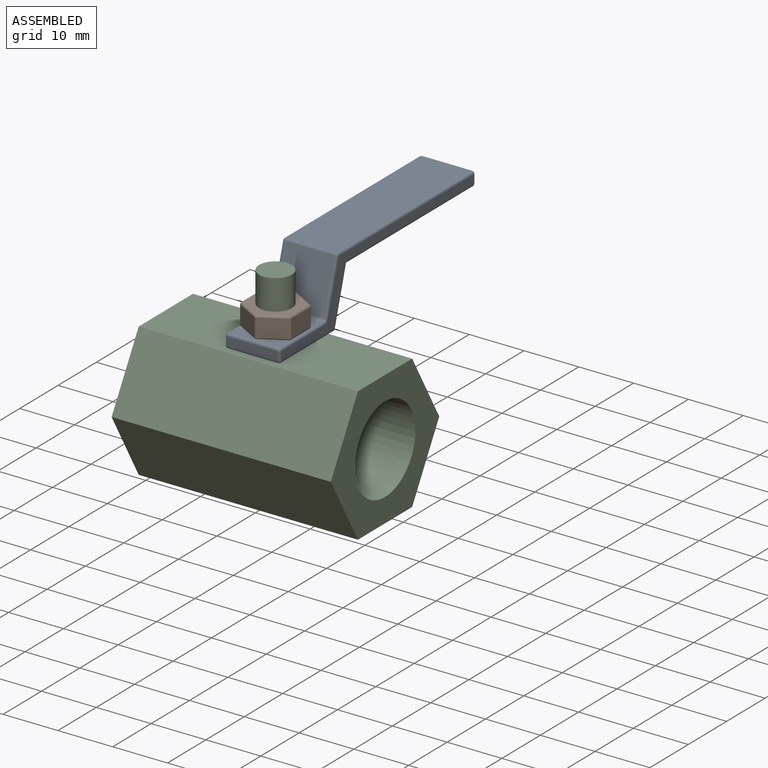
[diagram: assembled view]
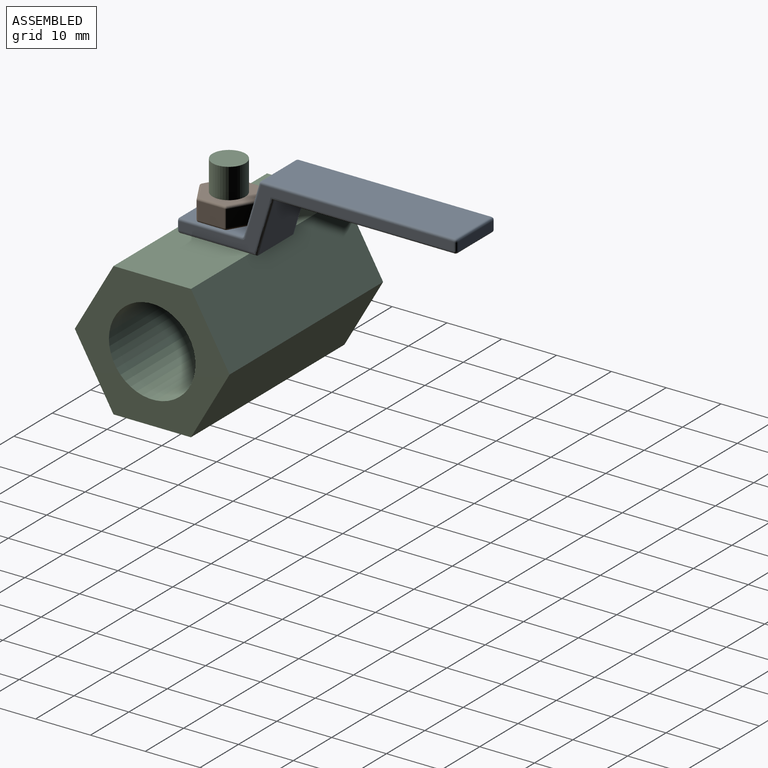
[diagram: assembled view, second angle]
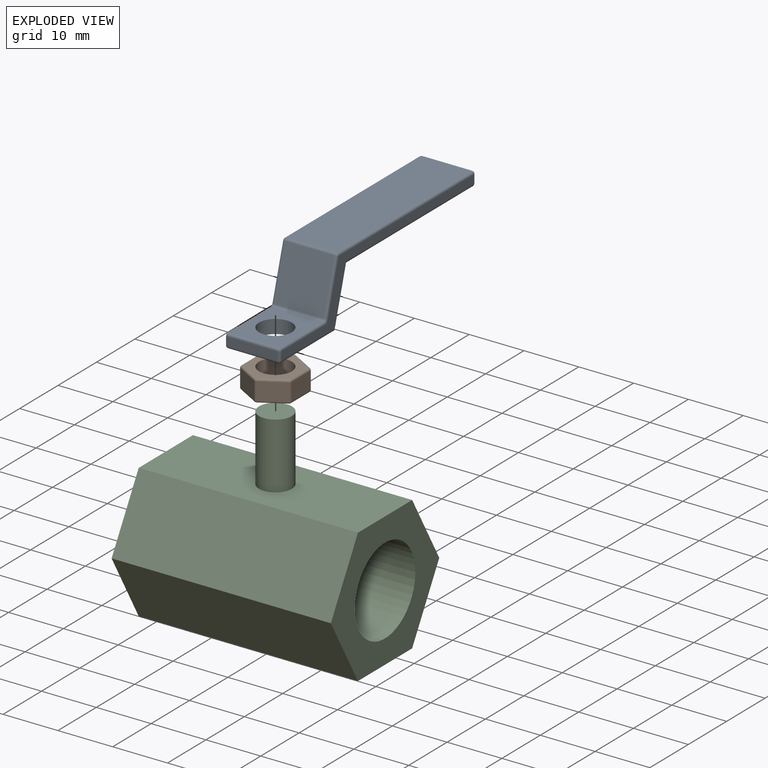
[diagram: exploded view]
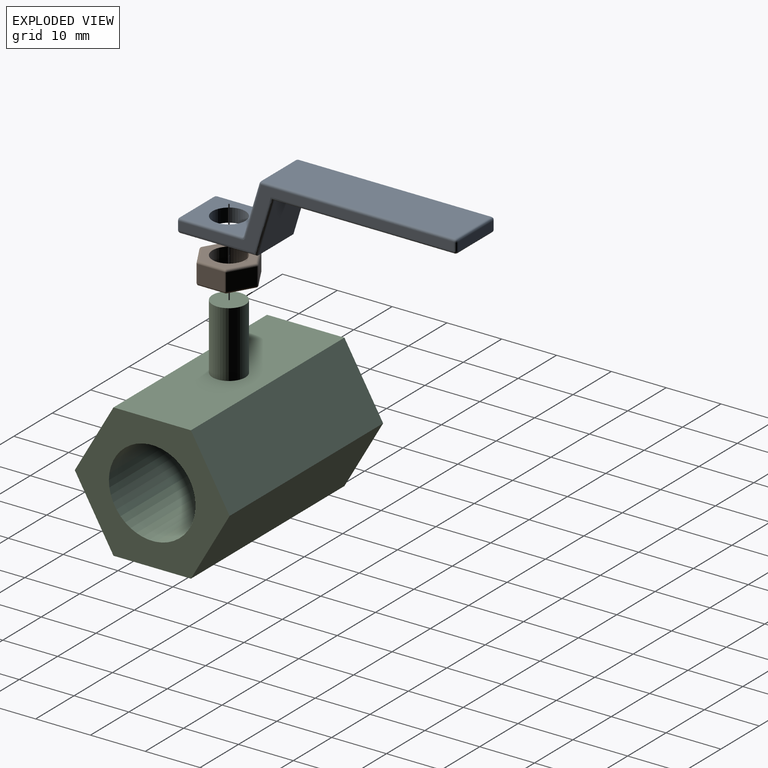
[diagram: exploded view, second angle]
ASSEMBLY  parts=3 mates=2
PART A: 65 faces, bbox 11x53.4x13.5 mm
  f0: plane 35.13x9mm, normal (0,0,1), area 316.2mm2, adj f52,f57,f60,f63
  f1: plane 9.29x9mm, normal (0,-0.96,0.29), area 87.3mm2, adj f49,f58,f59,f63
  f2: plane 11.13x9mm, normal (0,0,1), area 71.9mm2, adj f39,f48,f49,f50,f64
  f3: plane 9x1.5mm, normal (0,-1,0), area 13.5mm2, adj f31,f38,f39,f40
  f4: plane 14x9mm, normal (0,0,-1), area 97.7mm2, adj f5,f30,f31,f32,f64
  f5: plane 10x9mm, normal (0,0.96,-0.29), area 94mm2, adj f4,f6,f33,f36
  f6: plane 33x9mm, normal (0,0,-1), area 297mm2, adj f5,f37,f41,f42
  f7: plane 9x1.5mm, normal (0,1,0), area 13.5mm2, adj f42,f47,f51,f52
  f8: plane 50.02x11.52mm, normal (1,0,0), area 92.7mm2, adj f30,f33,f37,f38,f47,f48,f54,f57
  f9: plane 50.02x11.52mm, normal (-1,0,0), area 92.7mm2, adj f32,f36,f40,f41,f50,f51,f55,f59
  f10: bspline ~0.38x0.36mm, area 0.1mm2, adj f11,f59,f60,f62
  f11: bspline ~0.38x0.3mm, area 0.1mm2, adj f10,f59,f62,f63
  f12: bspline ~0.38x0.36mm, area 0.1mm2, adj f13,f57,f58,f61
  f13: bspline ~0.38x0.31mm, area 0.1mm2, adj f12,f57,f61,f63
  f14: bspline ~0.39x0.39mm, area 0.2mm2, adj f15,f51,f52,f56
  f15: bspline ~0.39x0.39mm, area 0.2mm2, adj f14,f51,f56,f60
  f16: bspline ~0.39x0.39mm, area 0.2mm2, adj f17,f47,f52,f53
  f17: bspline ~0.39x0.39mm, area 0.2mm2, adj f16,f52,f53,f57
  f18: bspline ~0.39x0.39mm, area 0.2mm2, adj f19,f41,f42,f46
  f19: bspline ~0.39x0.39mm, area 0.2mm2, adj f18,f41,f46,f51
  f20: bspline ~0.39x0.39mm, area 0.2mm2, adj f21,f39,f40,f45
  f21: bspline ~0.39x0.39mm, area 0.2mm2, adj f20,f39,f45,f50
  f22: bspline ~0.39x0.39mm, area 0.2mm2, adj f23,f38,f39,f44
  f23: bspline ~0.39x0.39mm, area 0.2mm2, adj f22,f38,f44,f48
  f24: bspline ~0.39x0.39mm, area 0.2mm2, adj f25,f37,f42,f43
  f25: bspline ~0.39x0.39mm, area 0.2mm2, adj f24,f42,f43,f47
  f26: bspline ~0.39x0.39mm, area 0.2mm2, adj f27,f31,f32,f35
  f27: bspline ~0.39x0.39mm, area 0.2mm2, adj f26,f31,f35,f40
  f28: bspline ~0.39x0.39mm, area 0.2mm2, adj f29,f30,f31,f34
  f29: bspline ~0.39x0.39mm, area 0.2mm2, adj f28,f30,f34,f38
  f30: bspline ~15.95x0.5mm, area 11.2mm2, adj f4,f8,f28,f29,f33
  f31: bspline ~11x0.5mm, area 7.3mm2, adj f3,f4,f26,f27,f28,f34
  f32: bspline ~15.95x0.5mm, area 11.2mm2, adj f4,f9,f26,f35,f36
  f33: bspline ~11.54x3.9mm, area 8.5mm2, adj f5,f8,f30,f37
  f34: bspline ~0.39x0.39mm, area 0.2mm2, adj f28,f29,f31,f38
  f35: bspline ~0.39x0.39mm, area 0.2mm2, adj f26,f27,f32,f40
  f36: bspline ~11.54x3.9mm, area 8.5mm2, adj f5,f9,f32,f41
  f37: bspline ~36.13x0.5mm, area 26.9mm2, adj f6,f8,f24,f33,f43
  f38: bspline ~2.75x0.5mm, area 1.2mm2, adj f3,f8,f22,f23,f29,f34
  f39: bspline ~11x0.5mm, area 7.3mm2, adj f2,f3,f20,f21,f22,f44
  f40: bspline ~2.75x0.5mm, area 1.2mm2, adj f3,f9,f20,f27,f35,f45
  f41: bspline ~34.67x0.5mm, area 26.9mm2, adj f6,f9,f18,f19,f36
  f42: bspline ~11x0.5mm, area 7.3mm2, adj f6,f7,f18,f24,f25,f46
  f43: bspline ~0.39x0.39mm, area 0.2mm2, adj f24,f25,f37,f47
  f44: bspline ~0.39x0.39mm, area 0.2mm2, adj f22,f23,f39,f48
  f45: bspline ~0.39x0.39mm, area 0.2mm2, adj f20,f21,f40,f50
  f46: bspline ~0.39x0.39mm, area 0.2mm2, adj f18,f19,f42,f51
  f47: bspline ~2.75x0.5mm, area 1.2mm2, adj f7,f8,f16,f25,f43,f53
  f48: bspline ~11.49x0.5mm, area 9mm2, adj f2,f8,f23,f44,f54
  f49: bspline ~9.9x0.48mm, area 5.8mm2, adj f1,f2,f54,f55
  f50: bspline ~11.49x0.5mm, area 9mm2, adj f2,f9,f21,f45,f55
  f51: bspline ~2.75x0.5mm, area 1.2mm2, adj f7,f9,f14,f15,f19,f46
  f52: bspline ~11x0.5mm, area 7.3mm2, adj f0,f7,f14,f16,f17,f56
  f53: bspline ~0.39x0.39mm, area 0.2mm2, adj f16,f17,f47,f57
  f54: bspline ~0.96x0.86mm, area 0.7mm2, adj f8,f48,f49,f58
  f55: bspline ~0.96x0.86mm, area 0.7mm2, adj f9,f49,f50,f59
  f56: bspline ~0.39x0.39mm, area 0.2mm2, adj f14,f15,f52,f60
  f57: bspline ~38.07x0.5mm, area 28.5mm2, adj f0,f8,f12,f13,f17,f53
  f58: bspline ~10.27x3.52mm, area 7.9mm2, adj f1,f8,f12,f54,f61
  f59: bspline ~10.27x3.52mm, area 7.9mm2, adj f1,f9,f10,f11,f55
  f60: bspline ~38.07x0.5mm, area 28.5mm2, adj f0,f9,f10,f15,f56,f62
  f61: bspline ~0.38x0.3mm, area 0.1mm2, adj f12,f13,f58,f63
  f62: bspline ~0.38x0.31mm, area 0.1mm2, adj f10,f11,f60,f63
  f63: bspline ~11x0.48mm, area 5.8mm2, adj f0,f1,f11,f13,f61,f62
  f64: cylinder r=3mm len=6mm, axis (0,0,1), area 47.1mm2, adj f2,f4
PART B: 39 faces, bbox 4x10.6x9.3 mm
  f0: plane 4.25x3.2mm, normal (0,-0.87,0.5), area 15.7mm2, adj f24,f33,f34,f38
  f1: plane 4.25x3.2mm, normal (0,-0.87,-0.5), area 15.7mm2, adj f27,f32,f35,f38
  f2: plane 4.9x3.2mm, normal (0,0,-1), area 15.7mm2, adj f17,f22,f26,f27
  f3: plane 4.25x3.2mm, normal (0,0.87,-0.5), area 15.7mm2, adj f9,f12,f16,f17
  f4: plane 4.25x3.2mm, normal (0,0.87,0.5), area 15.7mm2, adj f9,f13,f14,f15
  f5: cylinder r=3mm len=6mm, axis (1,0,0), area 75.4mm2, adj f7,f8
  f6: plane 4.9x3.2mm, normal (0,0,1), area 15.7mm2, adj f14,f23,f24,f25
  f7: plane 9.8x8.49mm, normal (-1,0,0), area 34.2mm2, adj f5,f12,f13,f22,f23,f32,f33
  f8: plane 9.8x8.49mm, normal (1,0,0), area 34.2mm2, adj f5,f15,f16,f25,f26,f34,f35
  f9: cylinder r=0.4mm len=3.2mm, axis (-1,0,0), area 1.3mm2, adj f3,f4,f10,f11
  f10: sphere r=0.4mm, area 0.2mm2, adj f9,f12,f13
  f11: sphere r=0.4mm, area 0.2mm2, adj f9,f15,f16
  f12: cylinder r=0.4mm len=4.45mm, axis (0,-0.5,-0.87), area 3.1mm2, adj f3,f7,f10,f18
  f13: cylinder r=0.4mm len=4.45mm, axis (0,0.5,-0.87), area 3.1mm2, adj f4,f7,f10,f19
  f14: cylinder r=0.4mm len=3.2mm, axis (1,0,0), area 1.3mm2, adj f4,f6,f19,f20
  f15: cylinder r=0.4mm len=4.45mm, axis (0,-0.5,0.87), area 3.1mm2, adj f4,f8,f11,f20
  f16: cylinder r=0.4mm len=4.45mm, axis (0,0.5,0.87), area 3.1mm2, adj f3,f8,f11,f21
  f17: cylinder r=0.4mm len=3.2mm, axis (-1,0,0), area 1.3mm2, adj f2,f3,f18,f21
  f18: sphere r=0.4mm, area 0.2mm2, adj f12,f17,f22
  f19: sphere r=0.4mm, area 0.2mm2, adj f13,f14,f23
  f20: sphere r=0.4mm, area 0.2mm2, adj f14,f15,f25
  f21: sphere r=0.4mm, area 0.2mm2, adj f16,f17,f26
  f22: cylinder r=0.4mm len=4.9mm, axis (0,-1,0), area 3.1mm2, adj f2,f7,f18,f28
  f23: cylinder r=0.4mm len=4.9mm, axis (0,1,0), area 3.1mm2, adj f6,f7,f19,f29
  f24: cylinder r=0.4mm len=3.2mm, axis (1,0,0), area 1.3mm2, adj f0,f6,f29,f30
  f25: cylinder r=0.4mm len=4.9mm, axis (0,-1,0), area 3.1mm2, adj f6,f8,f20,f30
  f26: cylinder r=0.4mm len=4.9mm, axis (0,1,0), area 3.1mm2, adj f2,f8,f21,f31
  f27: cylinder r=0.4mm len=3.2mm, axis (-1,0,0), area 1.3mm2, adj f1,f2,f28,f31
  f28: sphere r=0.4mm, area 0.2mm2, adj f22,f27,f32
  f29: sphere r=0.4mm, area 0.2mm2, adj f23,f24,f33
  f30: sphere r=0.4mm, area 0.2mm2, adj f24,f25,f34
  f31: sphere r=0.4mm, area 0.2mm2, adj f26,f27,f35
  f32: cylinder r=0.4mm len=4.45mm, axis (0,-0.5,0.87), area 3.1mm2, adj f1,f7,f28,f36
  f33: cylinder r=0.4mm len=4.45mm, axis (0,0.5,0.87), area 3.1mm2, adj f0,f7,f29,f36
  f34: cylinder r=0.4mm len=4.45mm, axis (0,-0.5,-0.87), area 3.1mm2, adj f0,f8,f30,f37
  f35: cylinder r=0.4mm len=4.45mm, axis (0,0.5,-0.87), area 3.1mm2, adj f1,f8,f31,f37
  f36: sphere r=0.4mm, area 0.2mm2, adj f32,f33,f38
  f37: sphere r=0.4mm, area 0.2mm2, adj f34,f35,f38
  f38: cylinder r=0.4mm len=3.2mm, axis (-1,0,0), area 1.3mm2, adj f0,f1,f36,f37
PART C: 11 faces, bbox 40x28.2x36.5 mm
  f0: plane 40x12.23mm, normal (0,-0.87,0.5), area 565mm2, adj f1,f6,f7,f8
  f1: plane 40x12.23mm, normal (0,-0.87,-0.5), area 565mm2, adj f0,f2,f7,f8
  f2: plane 40x14.12mm, normal (0,0,-1), area 565mm2, adj f1,f3,f7,f8
  f3: plane 40x12.23mm, normal (0,0.87,-0.5), area 565mm2, adj f2,f4,f7,f8
  f4: plane 40x12.23mm, normal (0,0.87,0.5), area 565mm2, adj f3,f6,f7,f8
  f5: cylinder r=7.9mm len=40mm, axis (1,0,0), area 1985.3mm2, adj f7,f8
  f6: plane 40x14.12mm, normal (0,0,1), area 536.7mm2, adj f0,f4,f7,f8,f9
  f7: plane 28.25x24.46mm, normal (-1,0,0), area 322.2mm2, adj f0,f1,f2,f3,f4,f5,f6
  f8: plane 28.25x24.46mm, normal (1,0,0), area 322.2mm2, adj f0,f1,f2,f3,f4,f5,f6
  f9: cylinder r=3mm len=12mm, axis (0,0,-1), area 226.2mm2, adj f6,f10
  f10: plane 6x6mm, normal (0,0,1), area 28.3mm2, adj f9
PLACE A t=(-21.81,-11.01,17.61)mm
PLACE B rot(axis=(0,-1,0),90deg) t=(-21.81,-5.01,24.11)mm
PLACE C t=(-1.81,-5.01,5.37)mm fixed
MATE revolute A.f64 <-> C.f9  axis (0,0,1) through (-21.81,-5.01,17.61)mm
MATE revolute B.f5 <-> A.f64  axis (0,0,-1) through (-21.81,-5.01,20.11)mm
